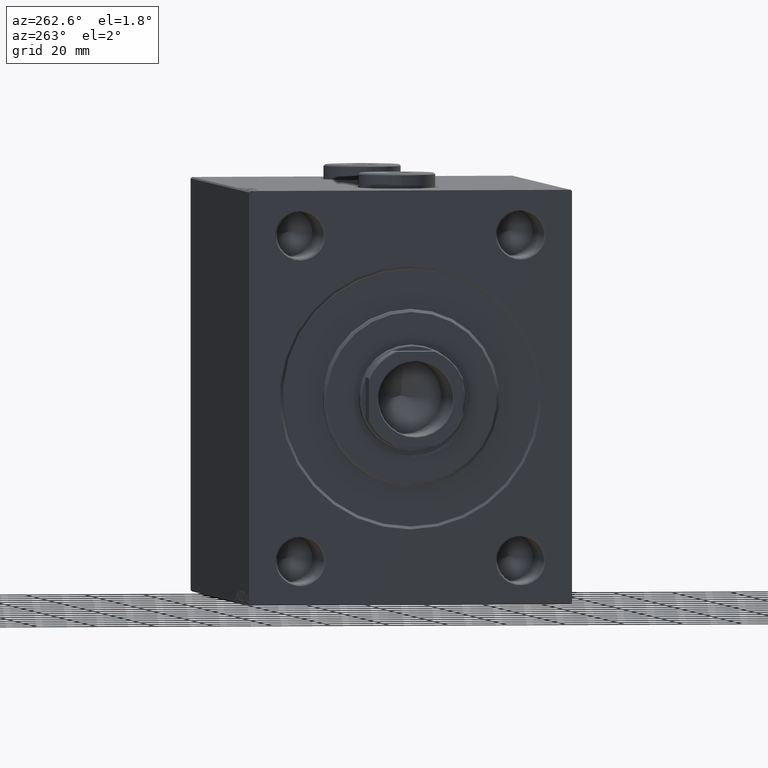
[diagram: clean part render]
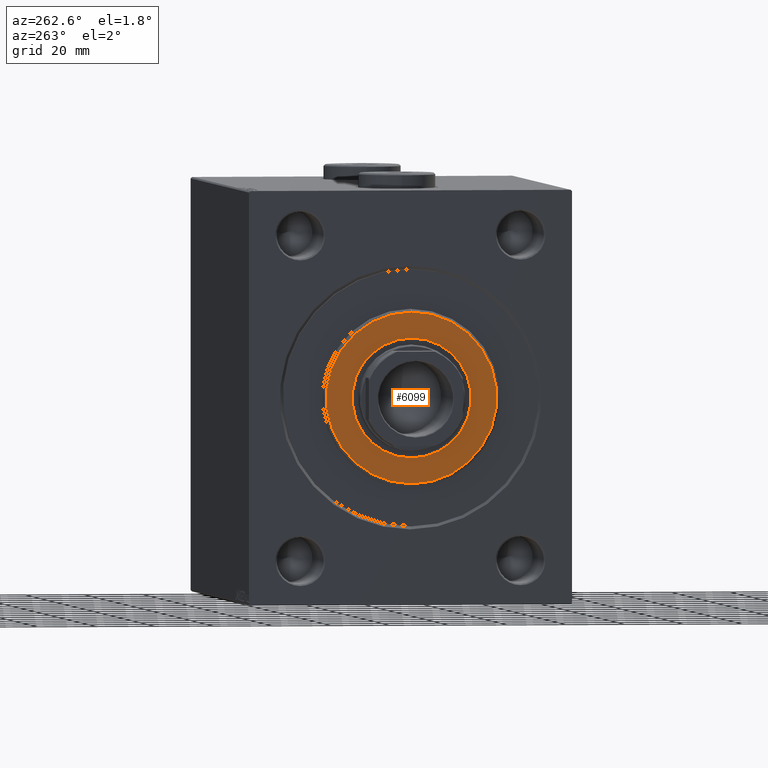
[diagram: same view with one face highlighted and labeled with its STEP entity id]
A machine part, auxiliary view. The second image highlights one B-rep face of the part: STEP entity #6099.
In plain terms, the highlighted planar face has unit normal (-1, 0, 0).
Its self-contained STEP definition (entity closure, byte-faithful):
#557 = CARTESIAN_POINT ( 'NONE',  ( 3.000000000000000000, 0.000000000000000000, 0.000000000000000000 ) ) ;
#1829 = VERTEX_POINT ( 'NONE', #19601 ) ;
#2316 = CARTESIAN_POINT ( 'NONE',  ( 3.000000000000000000, 0.000000000000000000, 0.000000000000000000 ) ) ;
#4010 = EDGE_LOOP ( 'NONE', ( #18354, #30332 ) ) ;
#6099 = ADVANCED_FACE ( 'NONE', ( #7479, #38691 ), #28279, .T. ) ;
#7479 = FACE_OUTER_BOUND ( 'NONE', #19904, .T. ) ;
#7637 = CARTESIAN_POINT ( 'NONE',  ( 3.000000000000000000, 2.479909768273390300E-15, 20.25000000000000000 ) ) ;
#7715 = CARTESIAN_POINT ( 'NONE',  ( 3.000000000000000000, 0.000000000000000000, 0.000000000000000000 ) ) ;
#9144 = EDGE_CURVE ( 'NONE', #14048, #1829, #9974, .T. ) ;
#9683 = DIRECTION ( 'NONE',  ( 1.000000000000000000, -0.000000000000000000, 0.000000000000000000 ) ) ;
#9974 = CIRCLE ( 'NONE', #15899, 28.99999999999999289 ) ;
#10473 = DIRECTION ( 'NONE',  ( 1.000000000000000000, -0.000000000000000000, 0.000000000000000000 ) ) ;
#10490 = CARTESIAN_POINT ( 'NONE',  ( 3.000000000000000000, 0.000000000000000000, 0.000000000000000000 ) ) ;
#11684 = DIRECTION ( 'NONE',  ( 1.000000000000000000, 0.000000000000000000, 0.000000000000000000 ) ) ;
#11916 = CARTESIAN_POINT ( 'NONE',  ( 3.000000000000000000, 0.000000000000000000, 0.000000000000000000 ) ) ;
#12375 = DIRECTION ( 'NONE',  ( 0.000000000000000000, 0.000000000000000000, -1.000000000000000000 ) ) ;
#12434 = AXIS2_PLACEMENT_3D ( 'NONE', #2316, #9683, #19638 ) ;
#13175 = AXIS2_PLACEMENT_3D ( 'NONE', #11916, #11684, #12375 ) ;
#14048 = VERTEX_POINT ( 'NONE', #32421 ) ;
#14876 = DIRECTION ( 'NONE',  ( 0.000000000000000000, 0.000000000000000000, -1.000000000000000000 ) ) ;
#15899 = AXIS2_PLACEMENT_3D ( 'NONE', #7715, #42183, #14876 ) ;
#17046 = EDGE_CURVE ( 'NONE', #20608, #42980, #33862, .T. ) ;
#17571 = CIRCLE ( 'NONE', #30867, 20.25000000000000000 ) ;
#18354 = ORIENTED_EDGE ( 'NONE', *, *, #41629, .F. ) ;
#18667 = ORIENTED_EDGE ( 'NONE', *, *, #9144, .T. ) ;
#19601 = CARTESIAN_POINT ( 'NONE',  ( 3.000000000000000000, 0.000000000000000000, 28.99999999999999289 ) ) ;
#19638 = DIRECTION ( 'NONE',  ( 0.000000000000000000, 0.000000000000000000, -1.000000000000000000 ) ) ;
#19904 = EDGE_LOOP ( 'NONE', ( #45668, #18667 ) ) ;
#20608 = VERTEX_POINT ( 'NONE', #7637 ) ;
#23217 = AXIS2_PLACEMENT_3D ( 'NONE', #557, #10473, #31983 ) ;
#26457 = CIRCLE ( 'NONE', #12434, 28.99999999999999289 ) ;
#28279 = PLANE ( 'NONE',  #23217 ) ;
#30332 = ORIENTED_EDGE ( 'NONE', *, *, #17046, .F. ) ;
#30867 = AXIS2_PLACEMENT_3D ( 'NONE', #10490, #38022, #38708 ) ;
#31983 = DIRECTION ( 'NONE',  ( 0.000000000000000000, 0.000000000000000000, -1.000000000000000000 ) ) ;
#32421 = CARTESIAN_POINT ( 'NONE',  ( 3.000000000000000000, 3.612708057484691604E-15, -28.99999999999999289 ) ) ;
#33862 = CIRCLE ( 'NONE', #13175, 20.25000000000000000 ) ;
#38022 = DIRECTION ( 'NONE',  ( 1.000000000000000000, 0.000000000000000000, 0.000000000000000000 ) ) ;
#38691 = FACE_BOUND ( 'NONE', #4010, .T. ) ;
#38708 = DIRECTION ( 'NONE',  ( 0.000000000000000000, 0.000000000000000000, -1.000000000000000000 ) ) ;
#41629 = EDGE_CURVE ( 'NONE', #42980, #20608, #17571, .T. ) ;
#42183 = DIRECTION ( 'NONE',  ( 1.000000000000000000, -0.000000000000000000, 0.000000000000000000 ) ) ;
#42555 = EDGE_CURVE ( 'NONE', #1829, #14048, #26457, .T. ) ;
#42980 = VERTEX_POINT ( 'NONE', #44779 ) ;
#44779 = CARTESIAN_POINT ( 'NONE',  ( 3.000000000000000000, 0.000000000000000000, -20.25000000000000000 ) ) ;
#45668 = ORIENTED_EDGE ( 'NONE', *, *, #42555, .T. ) ;